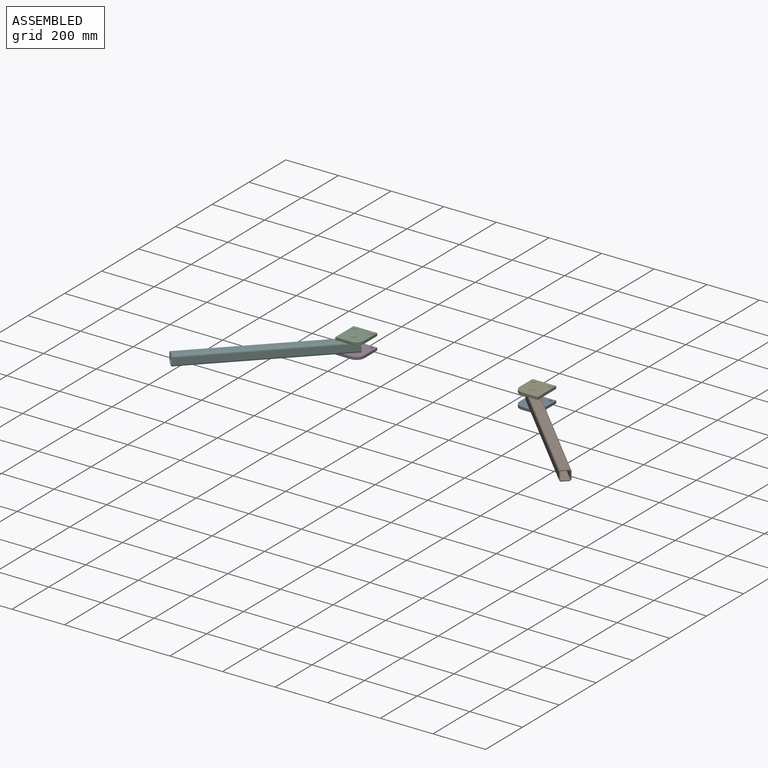
[diagram: assembled view]
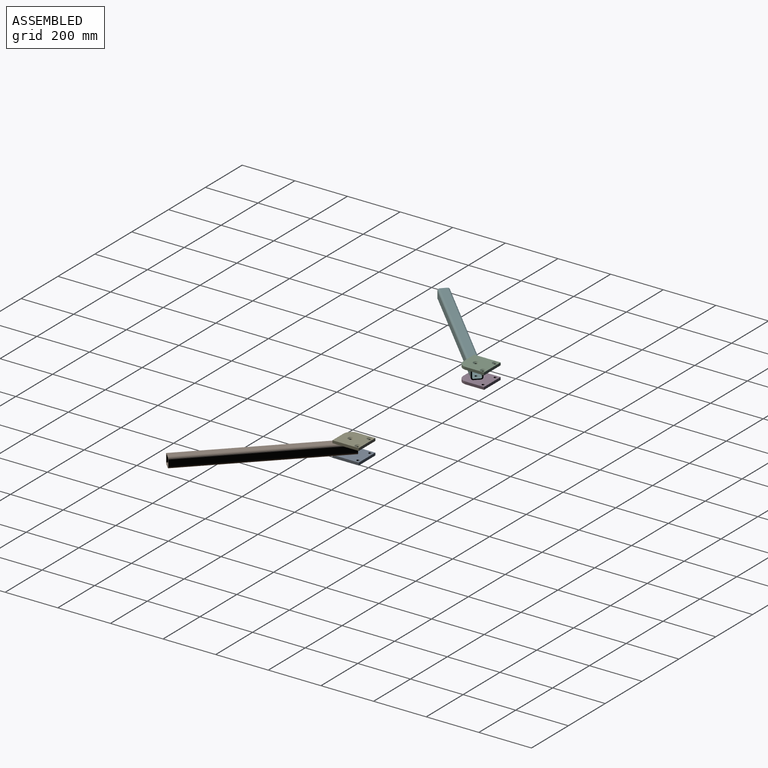
[diagram: assembled view, second angle]
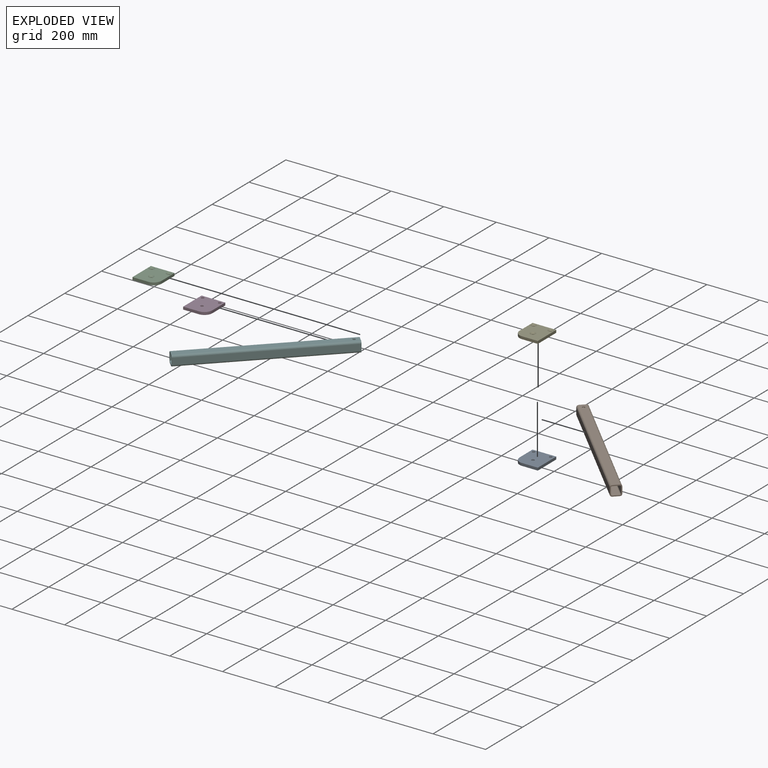
[diagram: exploded view]
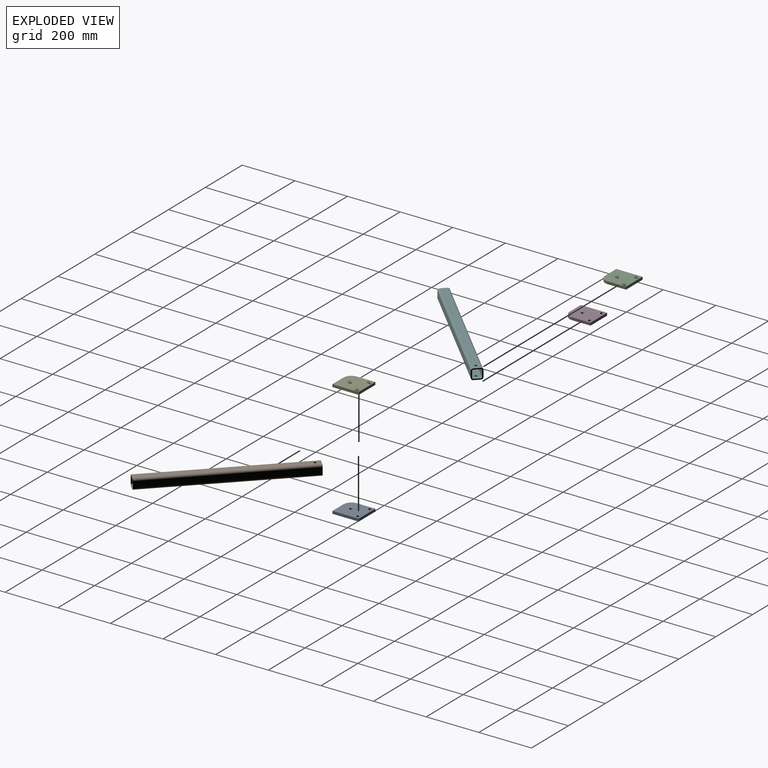
[diagram: exploded view, second angle]
ASSEMBLY  parts=6 mates=2
PART A: 10 faces, bbox 90x100x10 mm
  f0: plane 100x90mm, normal (0,0,-1), area 8547.1mm2, adj f1,f2,f3,f4,f5,f6,f7,f9
  f1: plane 70x10mm, normal (-1,0,0), area 700mm2, adj f0,f7,f8,f9
  f2: plane 60x10mm, normal (0,-1,0), area 600mm2, adj f0,f3,f8,f9
  f3: plane 100x10mm, normal (1,0,0), area 1000mm2, adj f0,f2,f7,f8
  f4: cylinder r=5.25mm len=10.5mm, axis (0,0,1), area 329.9mm2, adj f0,f8
  f5: cylinder r=5.25mm len=10.5mm, axis (0,0,1), area 329.9mm2, adj f0,f8
  f6: cylinder r=5.25mm len=10.5mm, axis (0,0,1), area 329.9mm2, adj f0,f8
  f7: plane 90x10mm, normal (0,1,0), area 900mm2, adj f0,f1,f3,f8
  f8: plane 100x90mm, normal (0,0,1), area 8547.1mm2, adj f1,f2,f3,f4,f5,f6,f7,f9
  f9: cylinder r=30mm len=30mm, axis (0,0,1), area 471.2mm2, adj f0,f1,f2,f8
PART B: 20 faces, bbox 452.5x452.5x40 mm
  f0: cylinder r=8mm len=429.92mm, axis (-0.71,0.71,0), area 7539.8mm2, adj f1,f15,f16,f17
  f1: plane 441.23x441.23mm, normal (0,0,1), area 14321.5mm2, adj f0,f2,f16,f17,f19
  f2: cylinder r=8mm len=429.92mm, axis (-0.71,0.71,0), area 7539.8mm2, adj f1,f3,f16,f17
  f3: plane 424.26x424.26mm, normal (-0.71,-0.71,0), area 14400mm2, adj f2,f4,f16,f17
  f4: cylinder r=8mm len=429.92mm, axis (-0.71,0.71,0), area 7539.8mm2, adj f3,f5,f16,f17
  f5: plane 441.23x441.23mm, normal (0,0,-1), area 14321.5mm2, adj f4,f6,f16,f17,f18
  f6: cylinder r=8mm len=429.92mm, axis (-0.71,0.71,0), area 7539.8mm2, adj f5,f15,f16,f17
  f7: cylinder r=4mm len=427.09mm, axis (-0.71,0.71,0), area 3769.9mm2, adj f8,f14,f16,f17
  f8: plane 424.26x424.26mm, normal (0.71,0.71,0), area 14400mm2, adj f7,f9,f16,f17
  f9: cylinder r=4mm len=427.09mm, axis (-0.71,0.71,0), area 3769.9mm2, adj f8,f10,f16,f17
  f10: plane 441.23x441.23mm, normal (0,0,-1), area 14321.5mm2, adj f9,f11,f16,f17,f19
  f11: cylinder r=4mm len=427.09mm, axis (-0.71,0.71,0), area 3769.9mm2, adj f10,f12,f16,f17
  f12: plane 424.26x424.26mm, normal (-0.71,-0.71,0), area 14400mm2, adj f11,f13,f16,f17
  f13: cylinder r=4mm len=427.09mm, axis (-0.71,0.71,0), area 3769.9mm2, adj f12,f14,f16,f17
  f14: plane 441.23x441.23mm, normal (0,0,1), area 14321.5mm2, adj f7,f13,f16,f17,f18
  f15: plane 424.26x424.26mm, normal (0.71,0.71,0), area 14400mm2, adj f0,f6,f16,f17
  f16: plane 40x28.28mm, normal (0.71,-0.71,0), area 534.8mm2, adj f0,f1,f2,f3,f4,f5,f6,f7
  f17: plane 40x28.28mm, normal (-0.71,0.71,0), area 534.8mm2, adj f0,f1,f2,f3,f4,f5,f6,f7
  f18: cylinder r=5mm len=10mm, axis (0,0,1), area 125.7mm2, adj f5,f14
  f19: cylinder r=5mm len=10mm, axis (0,0,1), area 125.7mm2, adj f1,f10
PART C: 13 faces, bbox 90x100x10 mm
  f0: plane 70x10mm, normal (1,0,0), area 700mm2, adj f6,f7,f8,f12
  f1: plane 60x10mm, normal (0,-1,0), area 600mm2, adj f2,f7,f8,f12
  f2: plane 100x10mm, normal (-1,0,0), area 1000mm2, adj f1,f6,f7,f8
  f3: cylinder r=5.25mm len=10.5mm, axis (0,0,-1), area 164.9mm2, adj f8,f9
  f4: cylinder r=5.25mm len=10.5mm, axis (0,0,-1), area 164.9mm2, adj f8,f11
  f5: cylinder r=5.25mm len=10.5mm, axis (0,0,-1), area 164.9mm2, adj f8,f10
  f6: plane 90x10mm, normal (0,1,0), area 900mm2, adj f0,f2,f7,f8
  f7: plane 100x90mm, normal (0,0,1), area 7816.7mm2, adj f0,f1,f2,f6,f9,f10,f11,f12
  f8: plane 100x90mm, normal (0,0,-1), area 8547.1mm2, adj f0,f1,f2,f3,f4,f5,f6,f12
  f9: cone r=5.25mm half-angle=45deg, axis (0,0,1), area 344.3mm2, adj f3,f7
  f10: cone r=5.25mm half-angle=45deg, axis (0,0,1), area 344.3mm2, adj f5,f7
  f11: cone r=5.25mm half-angle=45deg, axis (0,0,1), area 344.3mm2, adj f4,f7
  f12: cylinder r=30mm len=30mm, axis (0,0,-1), area 471.2mm2, adj f0,f1,f7,f8
PART D: 10 faces, bbox 90x100x10 mm
  f0: plane 100x90mm, normal (0,0,-1), area 8547.1mm2, adj f1,f2,f3,f4,f5,f6,f7,f9
  f1: plane 70x10mm, normal (1,0,0), area 700mm2, adj f0,f7,f8,f9
  f2: plane 60x10mm, normal (0,-1,0), area 600mm2, adj f0,f3,f8,f9
  f3: plane 100x10mm, normal (-1,0,0), area 1000mm2, adj f0,f2,f7,f8
  f4: cylinder r=5.25mm len=10.5mm, axis (0,0,1), area 329.9mm2, adj f0,f8
  f5: cylinder r=5.25mm len=10.5mm, axis (0,0,1), area 329.9mm2, adj f0,f8
  f6: cylinder r=5.25mm len=10.5mm, axis (0,0,1), area 329.9mm2, adj f0,f8
  f7: plane 90x10mm, normal (0,1,0), area 900mm2, adj f0,f1,f3,f8
  f8: plane 100x90mm, normal (0,0,1), area 8547.1mm2, adj f1,f2,f3,f4,f5,f6,f7,f9
  f9: cylinder r=30mm len=30mm, axis (0,0,1), area 471.2mm2, adj f0,f1,f2,f8
PART E: 13 faces, bbox 90x100x10 mm
  f0: plane 70x10mm, normal (-1,0,0), area 700mm2, adj f6,f7,f8,f12
  f1: plane 60x10mm, normal (0,-1,0), area 600mm2, adj f2,f7,f8,f12
  f2: plane 100x10mm, normal (1,0,0), area 1000mm2, adj f1,f6,f7,f8
  f3: cylinder r=5.25mm len=10.5mm, axis (0,0,-1), area 164.9mm2, adj f8,f9
  f4: cylinder r=5.25mm len=10.5mm, axis (0,0,-1), area 164.9mm2, adj f8,f11
  f5: cylinder r=5.25mm len=10.5mm, axis (0,0,-1), area 164.9mm2, adj f8,f10
  f6: plane 90x10mm, normal (0,1,0), area 900mm2, adj f0,f2,f7,f8
  f7: plane 100x90mm, normal (0,0,1), area 7816.7mm2, adj f0,f1,f2,f6,f9,f10,f11,f12
  f8: plane 100x90mm, normal (0,0,-1), area 8547.1mm2, adj f0,f1,f2,f3,f4,f5,f6,f12
  f9: cone r=5.25mm half-angle=45deg, axis (0,0,1), area 344.3mm2, adj f3,f7
  f10: cone r=5.25mm half-angle=45deg, axis (0,0,1), area 344.3mm2, adj f5,f7
  f11: cone r=5.25mm half-angle=45deg, axis (0,0,1), area 344.3mm2, adj f4,f7
  f12: cylinder r=30mm len=30mm, axis (0,0,-1), area 471.2mm2, adj f0,f1,f7,f8
PART F: 20 faces, bbox 452.5x452.5x40 mm
  f0: cylinder r=8mm len=429.92mm, axis (0.71,0.71,0), area 7539.8mm2, adj f1,f15,f16,f17
  f1: plane 441.23x441.23mm, normal (0,0,1), area 14321.5mm2, adj f0,f2,f16,f17,f19
  f2: cylinder r=8mm len=429.92mm, axis (0.71,0.71,0), area 7539.8mm2, adj f1,f3,f16,f17
  f3: plane 424.26x424.26mm, normal (0.71,-0.71,0), area 14400mm2, adj f2,f4,f16,f17
  f4: cylinder r=8mm len=429.92mm, axis (0.71,0.71,0), area 7539.8mm2, adj f3,f5,f16,f17
  f5: plane 441.23x441.23mm, normal (0,0,-1), area 14321.5mm2, adj f4,f6,f16,f17,f18
  f6: cylinder r=8mm len=429.92mm, axis (0.71,0.71,0), area 7539.8mm2, adj f5,f15,f16,f17
  f7: cylinder r=4mm len=427.09mm, axis (0.71,0.71,0), area 3769.9mm2, adj f8,f14,f16,f17
  f8: plane 424.26x424.26mm, normal (-0.71,0.71,0), area 14400mm2, adj f7,f9,f16,f17
  f9: cylinder r=4mm len=427.09mm, axis (0.71,0.71,0), area 3769.9mm2, adj f8,f10,f16,f17
  f10: plane 441.23x441.23mm, normal (0,0,-1), area 14321.5mm2, adj f9,f11,f16,f17,f19
  f11: cylinder r=4mm len=427.09mm, axis (0.71,0.71,0), area 3769.9mm2, adj f10,f12,f16,f17
  f12: plane 424.26x424.26mm, normal (0.71,-0.71,0), area 14400mm2, adj f11,f13,f16,f17
  f13: cylinder r=4mm len=427.09mm, axis (0.71,0.71,0), area 3769.9mm2, adj f12,f14,f16,f17
  f14: plane 441.23x441.23mm, normal (0,0,1), area 14321.5mm2, adj f7,f13,f16,f17,f18
  f15: plane 424.26x424.26mm, normal (-0.71,0.71,0), area 14400mm2, adj f0,f6,f16,f17
  f16: plane 40x28.28mm, normal (-0.71,-0.71,0), area 534.8mm2, adj f0,f1,f2,f3,f4,f5,f6,f7
  f17: plane 40x28.28mm, normal (0.71,0.71,0), area 534.8mm2, adj f0,f1,f2,f3,f4,f5,f6,f7
  f18: cylinder r=5mm len=10mm, axis (0,0,1), area 125.7mm2, adj f5,f14
  f19: cylinder r=5mm len=10mm, axis (0,0,1), area 125.7mm2, adj f1,f10
PLACE A at identity fixed
PLACE B at identity
PLACE C at identity fixed
PLACE D at identity fixed
PLACE E at identity fixed
PLACE F at identity
MATE revolute F.f18 <-> C.f3  axis (0,0,1) through (-340,171,907)mm
MATE revolute B.f18 <-> E.f3  axis (0,0,1) through (340,171,907)mm
